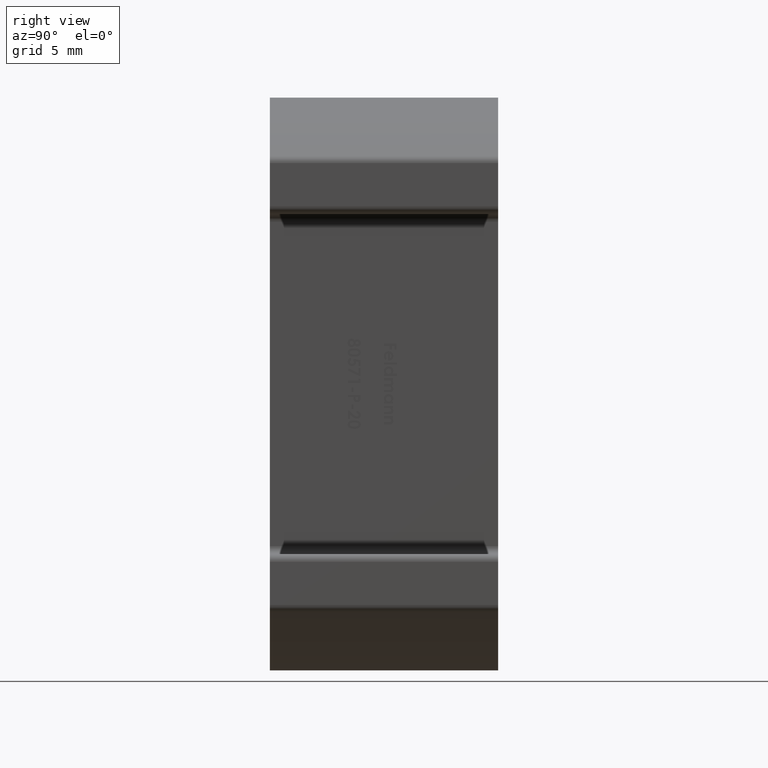
[diagram: clean part render]
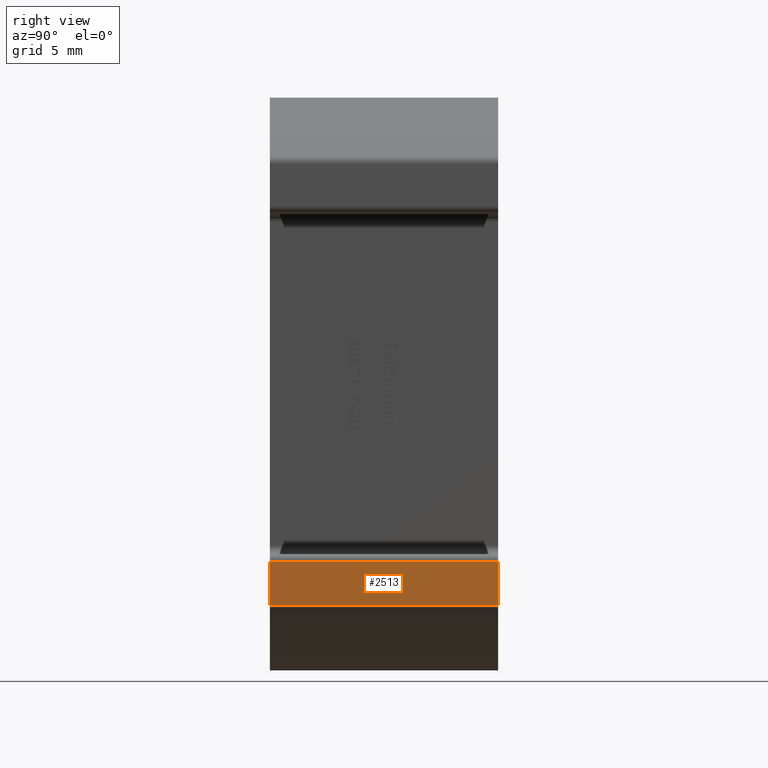
[diagram: same view with one face highlighted and labeled with its STEP entity id]
A machine part, right view. The second image highlights one B-rep face of the part: STEP entity #2513.
In plain terms, the highlighted planar face has unit normal (1, 0, 0).
Its self-contained STEP definition (entity closure, byte-faithful):
#486 = PLANE ( 'NONE',  #8227 ) ;
#1020 = CARTESIAN_POINT ( 'NONE',  ( 12.49999999999999600, 7.250000000000000000, -11.30000000000000400 ) ) ;
#1335 = LINE ( 'NONE', #2271, #10697 ) ;
#1459 = DIRECTION ( 'NONE',  ( 0.0000000000000000000, 0.0000000000000000000, 1.000000000000000000 ) ) ;
#1968 = LINE ( 'NONE', #10540, #2608 ) ;
#2055 = DIRECTION ( 'NONE',  ( 0.0000000000000000000, -1.000000000000000000, -0.0000000000000000000 ) ) ;
#2271 = CARTESIAN_POINT ( 'NONE',  ( 12.49999999999999600, 7.250000000000000000, -14.03569578467959800 ) ) ;
#2513 = ADVANCED_FACE ( 'NONE', ( #12796 ), #486, .T. ) ;
#2608 = VECTOR ( 'NONE', #1459, 1000.000000000000000 ) ;
#3121 = VERTEX_POINT ( 'NONE', #4354 ) ;
#3297 = DIRECTION ( 'NONE',  ( -0.0000000000000000000, 1.000000000000000000, -0.0000000000000000000 ) ) ;
#4146 = CARTESIAN_POINT ( 'NONE',  ( 12.49999999999999600, 7.250000000000000000, -11.30000000000000400 ) ) ;
#4354 = CARTESIAN_POINT ( 'NONE',  ( 12.49999999999999600, -7.250000000000000000, -11.30000000000000400 ) ) ;
#4367 = ORIENTED_EDGE ( 'NONE', *, *, #8228, .F. ) ;
#4417 = CARTESIAN_POINT ( 'NONE',  ( 12.49999999999999600, 7.250000000000000000, -14.30000000000000400 ) ) ;
#5356 = EDGE_CURVE ( 'NONE', #12969, #6576, #1335, .T. ) ;
#6556 = DIRECTION ( 'NONE',  ( 0.0000000000000000000, 0.0000000000000000000, -1.000000000000000000 ) ) ;
#6576 = VERTEX_POINT ( 'NONE', #6685 ) ;
#6685 = CARTESIAN_POINT ( 'NONE',  ( 12.49999999999999600, 7.250000000000000000, -14.03569578467959800 ) ) ;
#6865 = CARTESIAN_POINT ( 'NONE',  ( 12.49999999999999600, -7.250000000000000000, -14.03569578467959800 ) ) ;
#7570 = VECTOR ( 'NONE', #2055, 1000.000000000000000 ) ;
#7859 = ORIENTED_EDGE ( 'NONE', *, *, #11659, .T. ) ;
#7891 = LINE ( 'NONE', #1020, #7570 ) ;
#8227 = AXIS2_PLACEMENT_3D ( 'NONE', #4417, #12647, #6556 ) ;
#8228 = EDGE_CURVE ( 'NONE', #12969, #3121, #12813, .T. ) ;
#8482 = CARTESIAN_POINT ( 'NONE',  ( 12.49999999999999600, -7.250000000000000000, -14.30000000000000400 ) ) ;
#8934 = EDGE_CURVE ( 'NONE', #12500, #3121, #7891, .T. ) ;
#9053 = EDGE_LOOP ( 'NONE', ( #4367, #10428, #7859, #12217 ) ) ;
#9505 = DIRECTION ( 'NONE',  ( 0.0000000000000000000, 0.0000000000000000000, 1.000000000000000000 ) ) ;
#10128 = VECTOR ( 'NONE', #9505, 1000.000000000000000 ) ;
#10428 = ORIENTED_EDGE ( 'NONE', *, *, #5356, .T. ) ;
#10540 = CARTESIAN_POINT ( 'NONE',  ( 12.49999999999999600, 7.250000000000000000, -14.30000000000000400 ) ) ;
#10697 = VECTOR ( 'NONE', #3297, 1000.000000000000000 ) ;
#11659 = EDGE_CURVE ( 'NONE', #6576, #12500, #1968, .T. ) ;
#12217 = ORIENTED_EDGE ( 'NONE', *, *, #8934, .T. ) ;
#12500 = VERTEX_POINT ( 'NONE', #4146 ) ;
#12647 = DIRECTION ( 'NONE',  ( 1.000000000000000000, 0.0000000000000000000, 0.0000000000000000000 ) ) ;
#12796 = FACE_OUTER_BOUND ( 'NONE', #9053, .T. ) ;
#12813 = LINE ( 'NONE', #8482, #10128 ) ;
#12969 = VERTEX_POINT ( 'NONE', #6865 ) ;